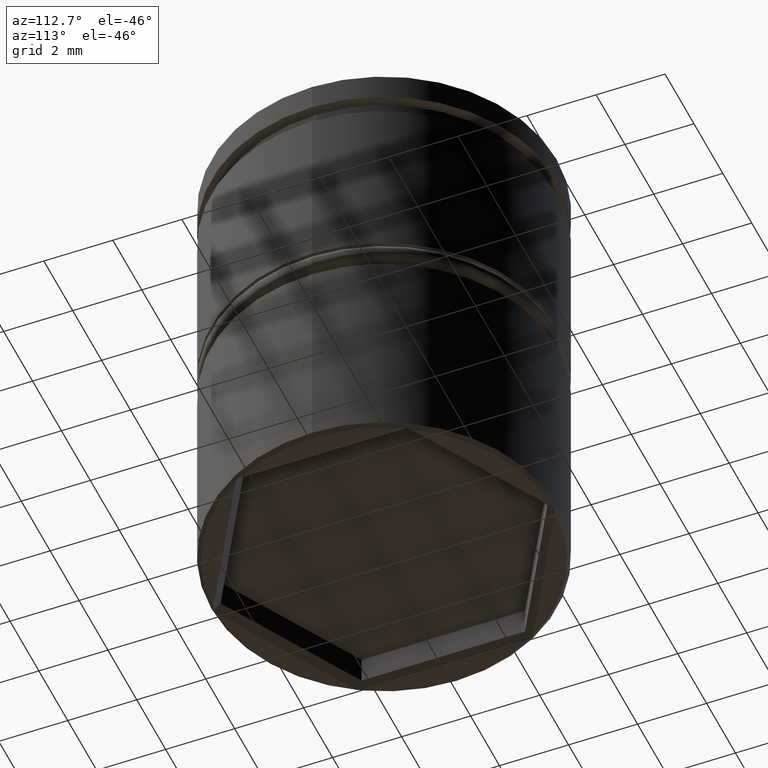
[diagram: clean part render]
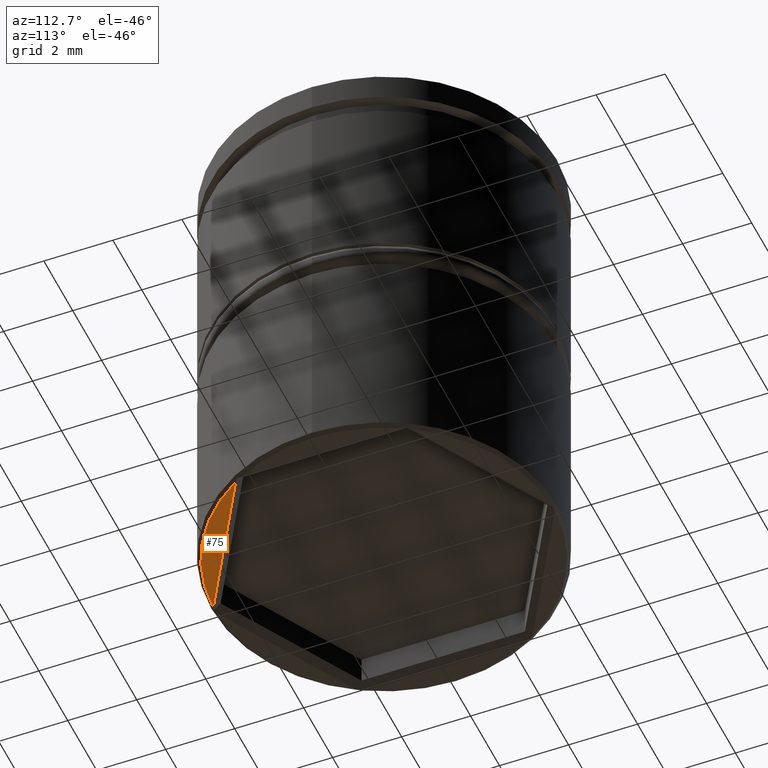
[diagram: same view with one face highlighted and labeled with its STEP entity id]
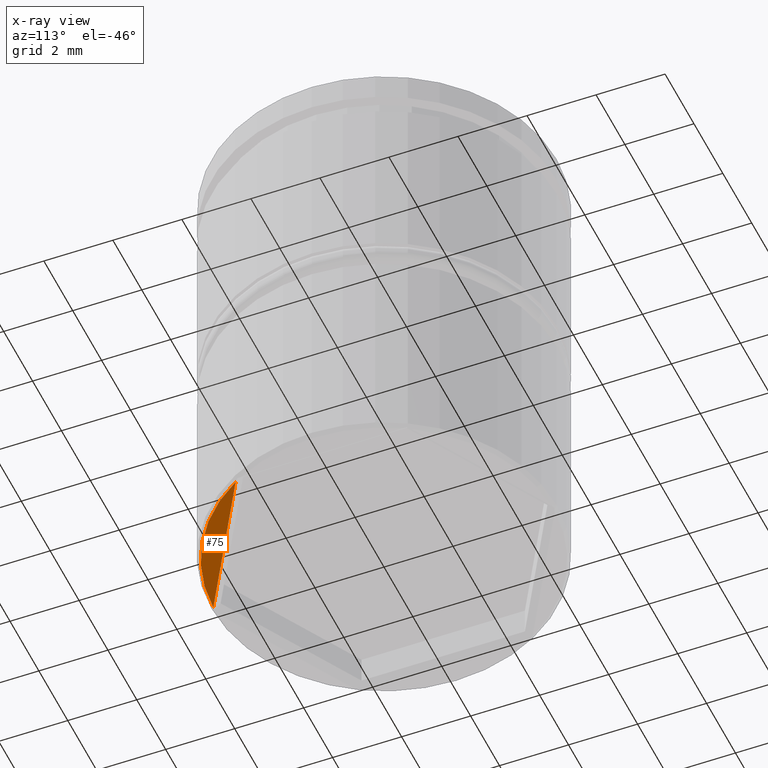
[diagram: x-ray of the same camera — body ghosted, the highlighted face saturated]
A machine part, auxiliary view. The second image highlights one B-rep face of the part: STEP entity #75.
The next image is the same camera in x-ray: the body ghosted, the highlighted face saturated — about 0% of this face is hidden behind the body in this view.
In plain terms, the highlighted planar face has unit normal (0, 0, -1).
Its self-contained STEP definition (entity closure, byte-faithful):
#75 = ADVANCED_FACE ( 'NONE', ( #230 ), #1198, .T. ) ;
#87 = VERTEX_POINT ( 'NONE', #425 ) ;
#139 = EDGE_LOOP ( 'NONE', ( #294, #1012 ) ) ;
#177 = EDGE_CURVE ( 'NONE', #232, #87, #246, .T. ) ;
#216 = AXIS2_PLACEMENT_3D ( 'NONE', #861, #1176, #965 ) ;
#230 = FACE_OUTER_BOUND ( 'NONE', #139, .T. ) ;
#232 = VERTEX_POINT ( 'NONE', #281 ) ;
#246 = LINE ( 'NONE', #666, #399 ) ;
#281 = CARTESIAN_POINT ( 'NONE',  ( 0.1153010050624148353, -4.898643248720162546, -13.50000000000000000 ) ) ;
#294 = ORIENTED_EDGE ( 'NONE', *, *, #1338, .T. ) ;
#383 = AXIS2_PLACEMENT_3D ( 'NONE', #591, #1223, #1029 ) ;
#399 = VECTOR ( 'NONE', #467, 1000.000000000000000 ) ;
#425 = CARTESIAN_POINT ( 'NONE',  ( 4.184698994937584793, -2.549175223826011472, -13.50000000000000000 ) ) ;
#467 = DIRECTION ( 'NONE',  ( 0.8660254037844387076, 0.4999999999999998890, 0.000000000000000000 ) ) ;
#591 = CARTESIAN_POINT ( 'NONE',  ( 0.000000000000000000, 0.000000000000000000, -13.50000000000000000 ) ) ;
#666 = CARTESIAN_POINT ( 'NONE',  ( 4.200000000000001954, -2.540341184434353305, -13.50000000000000000 ) ) ;
#861 = CARTESIAN_POINT ( 'NONE',  ( 0.000000000000000000, 5.000000000000000000, -13.50000000000000000 ) ) ;
#965 = DIRECTION ( 'NONE',  ( -1.000000000000000000, 0.000000000000000000, -0.000000000000000000 ) ) ;
#984 = CIRCLE ( 'NONE', #383, 4.900000000000003020 ) ;
#1012 = ORIENTED_EDGE ( 'NONE', *, *, #177, .T. ) ;
#1029 = DIRECTION ( 'NONE',  ( -1.000000000000000000, 0.000000000000000000, 0.000000000000000000 ) ) ;
#1176 = DIRECTION ( 'NONE',  ( 0.000000000000000000, 0.000000000000000000, -1.000000000000000000 ) ) ;
#1198 = PLANE ( 'NONE',  #216 ) ;
#1223 = DIRECTION ( 'NONE',  ( 0.000000000000000000, 0.000000000000000000, -1.000000000000000000 ) ) ;
#1338 = EDGE_CURVE ( 'NONE', #87, #232, #984, .T. ) ;